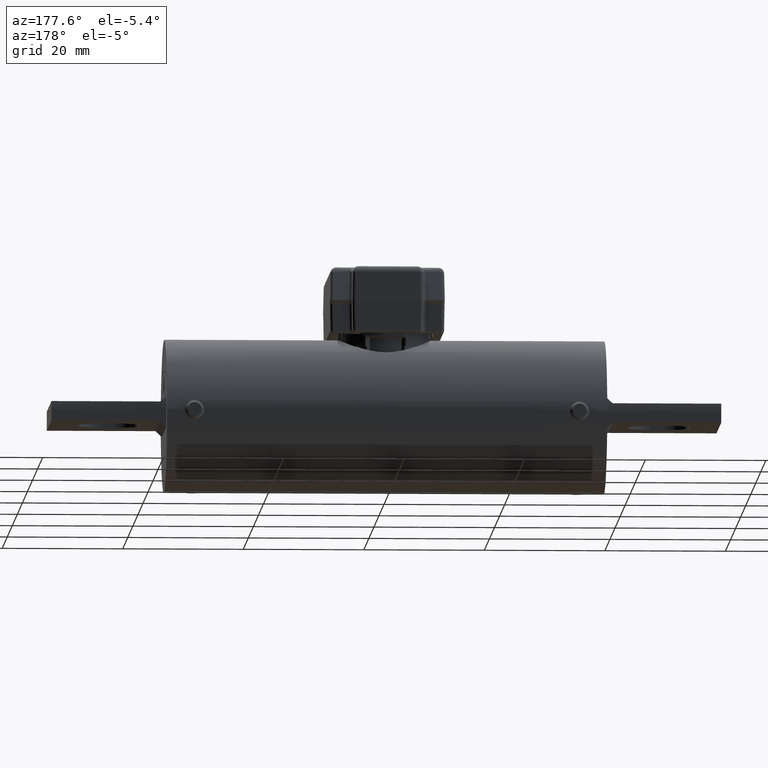
[diagram: clean part render]
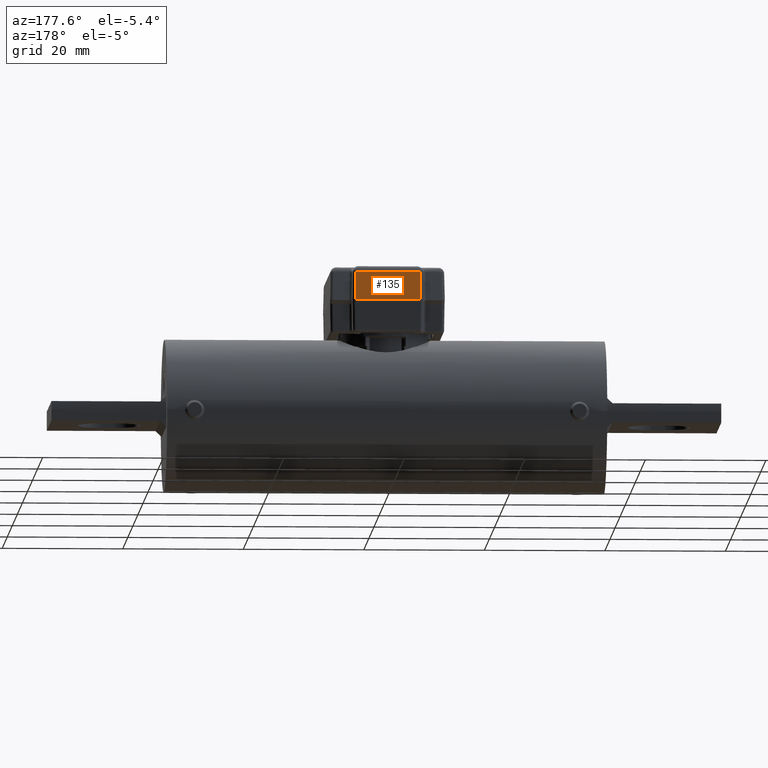
[diagram: same view with one face highlighted and labeled with its STEP entity id]
A machine part, auxiliary view. The second image highlights one B-rep face of the part: STEP entity #135.
In plain terms, the highlighted planar face has unit normal (0, 0.9998, 0.0175).
Its self-contained STEP definition (entity closure, byte-faithful):
#135 = ADVANCED_FACE ( 'NONE', ( #18673 ), #6515, .T. ) ;
#207 = EDGE_CURVE ( 'NONE', #12870, #21356, #22565, .T. ) ;
#1386 = VECTOR ( 'NONE', #22764, 39.37007874015748900 ) ;
#1712 = DIRECTION ( 'NONE',  ( -4.844015865448504100E-018, -0.01745240643728360500, 0.9998476951563912700 ) ) ;
#2441 = LINE ( 'NONE', #16547, #17913 ) ;
#3894 = CARTESIAN_POINT ( 'NONE',  ( -0.2125030460968717600, 0.6300000000000001200, 0.7139999999999999700 ) ) ;
#4879 = EDGE_CURVE ( 'NONE', #22581, #18663, #2441, .T. ) ;
#5274 = EDGE_CURVE ( 'NONE', #18663, #12870, #9597, .T. ) ;
#5884 = DIRECTION ( 'NONE',  ( 1.000000000000000000, -1.743139443744412800E-015, 1.291667631952260700E-030 ) ) ;
#6515 = PLANE ( 'NONE',  #36177 ) ;
#6968 = CARTESIAN_POINT ( 'NONE',  ( 0.2103489490942927200, 0.6268459029974196000, 0.8946980962574913000 ) ) ;
#7211 = VECTOR ( 'NONE', #15471, 39.37007874015748900 ) ;
#7716 = ORIENTED_EDGE ( 'NONE', *, *, #207, .T. ) ;
#7934 = ORIENTED_EDGE ( 'NONE', *, *, #4879, .T. ) ;
#8196 = LINE ( 'NONE', #27720, #7211 ) ;
#8709 = EDGE_LOOP ( 'NONE', ( #21641, #7716, #39623, #7934 ) ) ;
#9597 = LINE ( 'NONE', #10242, #1386 ) ;
#10242 = CARTESIAN_POINT ( 'NONE',  ( -0.2123672409587405700, 0.6298641948618689500, 0.7217802711527964200 ) ) ;
#12870 = VERTEX_POINT ( 'NONE', #38941 ) ;
#13981 = CARTESIAN_POINT ( 'NONE',  ( 0.2135030460968726000, 0.6299999999999994500, 0.7139999999999999700 ) ) ;
#15471 = DIRECTION ( 'NONE',  ( 0.01744974916068279000, 0.01744974916068274500, -0.9996954598818874600 ) ) ;
#16547 = CARTESIAN_POINT ( 'NONE',  ( 0.2335000000000004600, 0.6299999999999994500, 0.7139999999999999700 ) ) ;
#17913 = VECTOR ( 'NONE', #29062, 39.37007874015748100 ) ;
#18663 = VERTEX_POINT ( 'NONE', #3894 ) ;
#18673 = FACE_OUTER_BOUND ( 'NONE', #8709, .T. ) ;
#21356 = VERTEX_POINT ( 'NONE', #6968 ) ;
#21641 = ORIENTED_EDGE ( 'NONE', *, *, #5274, .T. ) ;
#22565 = LINE ( 'NONE', #23229, #30830 ) ;
#22581 = VERTEX_POINT ( 'NONE', #13981 ) ;
#22764 = DIRECTION ( 'NONE',  ( 0.01744974916068277000, -0.01744974916068280400, 0.9996954598818874600 ) ) ;
#23229 = CARTESIAN_POINT ( 'NONE',  ( 0.2096629318126646800, 0.6268459029974196000, 0.8946980962574913000 ) ) ;
#24550 = DIRECTION ( 'NONE',  ( 1.742873955164045300E-015, 0.9998476951563912700, 0.01745240643728360500 ) ) ;
#27720 = CARTESIAN_POINT ( 'NONE',  ( 0.2135091350442705200, 0.6300060889473974000, 0.7136511644371986700 ) ) ;
#29062 = DIRECTION ( 'NONE',  ( -1.000000000000000000, 1.743139443744412800E-015, -1.286838320398330200E-030 ) ) ;
#30830 = VECTOR ( 'NONE', #5884, 39.37007874015748100 ) ;
#32387 = CARTESIAN_POINT ( 'NONE',  ( 0.2335000000000004600, 0.6299999999999994500, 0.7139999999999999700 ) ) ;
#36177 = AXIS2_PLACEMENT_3D ( 'NONE', #32387, #24550, #1712 ) ;
#37255 = EDGE_CURVE ( 'NONE', #21356, #22581, #8196, .T. ) ;
#38941 = CARTESIAN_POINT ( 'NONE',  ( -0.2093489490942919400, 0.6268459029974202700, 0.8946980962574913000 ) ) ;
#39623 = ORIENTED_EDGE ( 'NONE', *, *, #37255, .T. ) ;